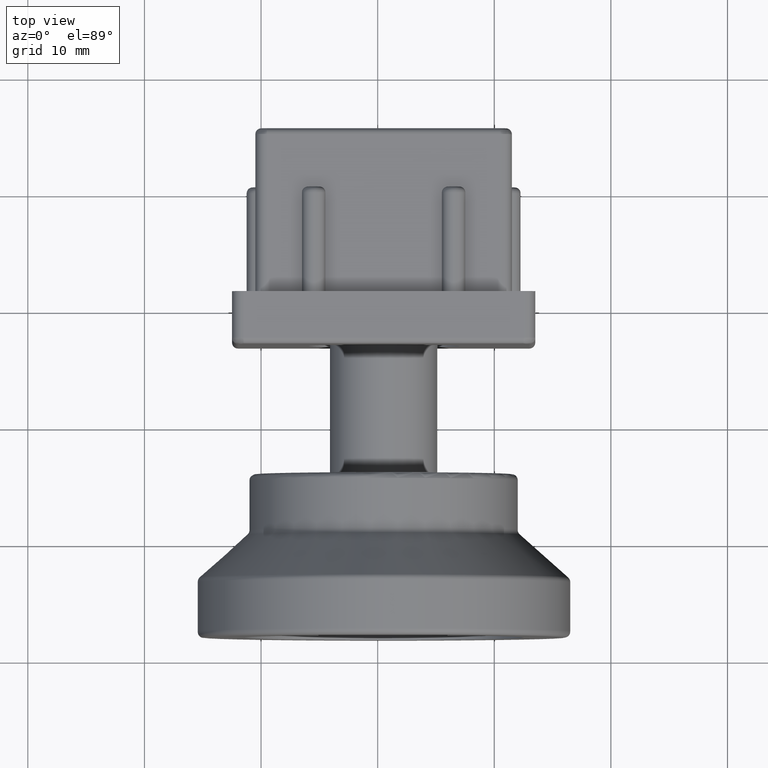
[diagram: clean part render]
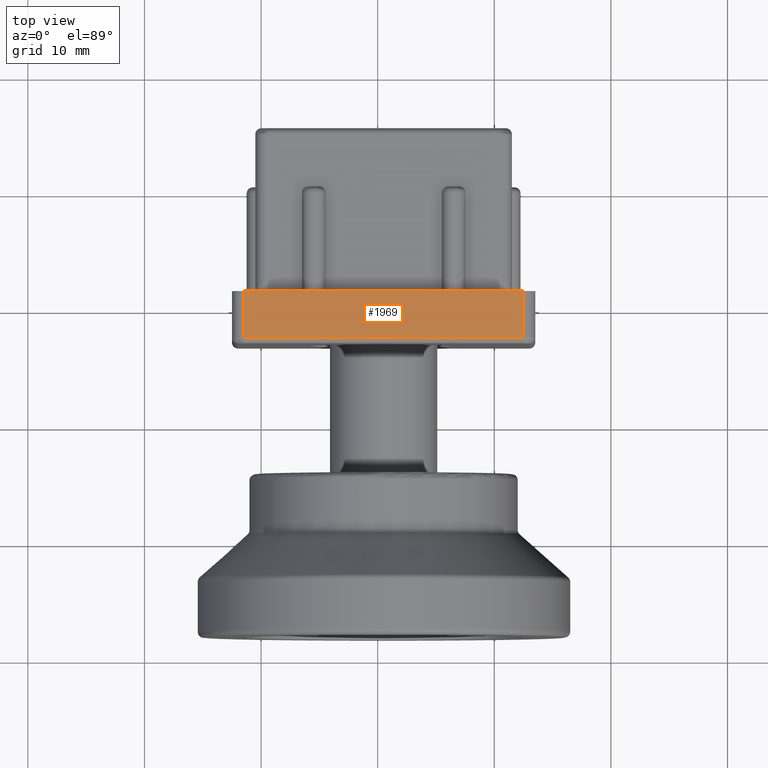
[diagram: same view with one face highlighted and labeled with its STEP entity id]
A machine part, top view. The second image highlights one B-rep face of the part: STEP entity #1969.
In plain terms, the highlighted planar face has unit normal (0, 0, 1).
Its self-contained STEP definition (entity closure, byte-faithful):
#238=PLANE('',#2200);
#358=FACE_OUTER_BOUND('',#504,.T.);
#504=EDGE_LOOP('',(#1797,#1798,#1799,#1800));
#595=LINE('',#3509,#723);
#616=LINE('',#3669,#744);
#618=LINE('',#3675,#746);
#619=LINE('',#3679,#747);
#723=VECTOR('',#2588,24.);
#744=VECTOR('',#2715,4.);
#746=VECTOR('',#2721,24.);
#747=VECTOR('',#2728,4.);
#928=VERTEX_POINT('',#3501);
#930=VERTEX_POINT('',#3507);
#962=VERTEX_POINT('',#3667);
#964=VERTEX_POINT('',#3673);
#1167=EDGE_CURVE('',#930,#928,#595,.T.);
#1224=EDGE_CURVE('',#962,#930,#616,.T.);
#1227=EDGE_CURVE('',#964,#962,#618,.T.);
#1230=EDGE_CURVE('',#928,#964,#619,.T.);
#1797=ORIENTED_EDGE('',*,*,#1167,.F.);
#1798=ORIENTED_EDGE('',*,*,#1224,.F.);
#1799=ORIENTED_EDGE('',*,*,#1227,.F.);
#1800=ORIENTED_EDGE('',*,*,#1230,.F.);
#1969=ADVANCED_FACE('',(#358),#238,.T.);
#2200=AXIS2_PLACEMENT_3D('',#3727,#2788,#2789);
#2588=DIRECTION('',(-1.,0.,0.));
#2715=DIRECTION('',(0.,-1.,0.));
#2721=DIRECTION('',(1.,0.,0.));
#2728=DIRECTION('',(0.,1.,0.));
#2788=DIRECTION('center_axis',(0.,0.,1.));
#2789=DIRECTION('ref_axis',(-1.,0.,0.));
#3501=CARTESIAN_POINT('',(-12.,-4.,13.));
#3507=CARTESIAN_POINT('',(12.,-4.,13.));
#3509=CARTESIAN_POINT('',(6.5,-4.,13.));
#3667=CARTESIAN_POINT('',(12.,0.,13.));
#3669=CARTESIAN_POINT('',(12.,0.,13.));
#3673=CARTESIAN_POINT('',(-12.,0.,13.));
#3675=CARTESIAN_POINT('',(-13.,0.,13.));
#3679=CARTESIAN_POINT('',(-12.,0.,13.));
#3727=CARTESIAN_POINT('Origin',(13.,0.,13.));